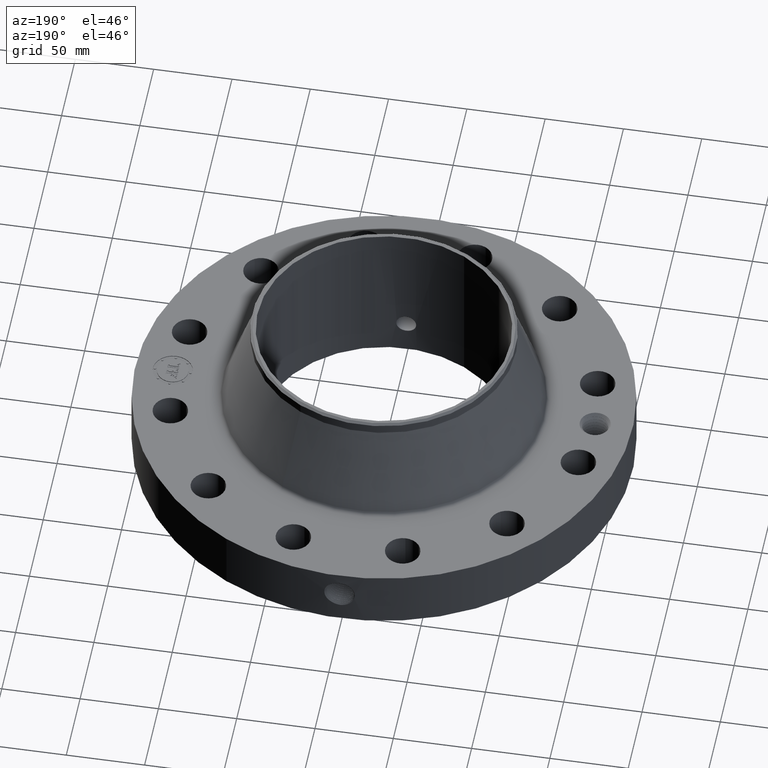
[diagram: clean part render]
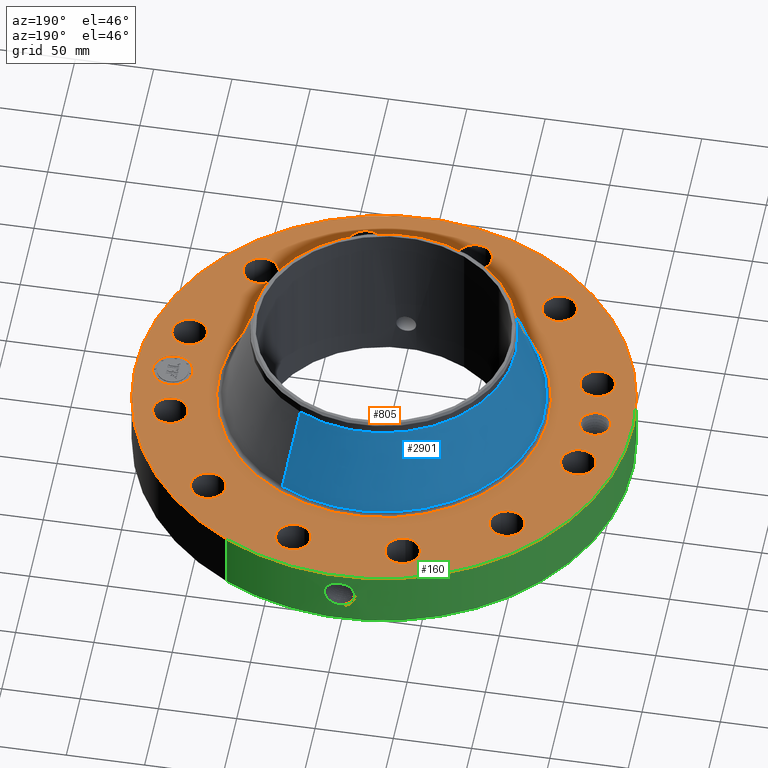
[diagram: same view with three faces highlighted in distinct colors, each labeled with its STEP entity id]
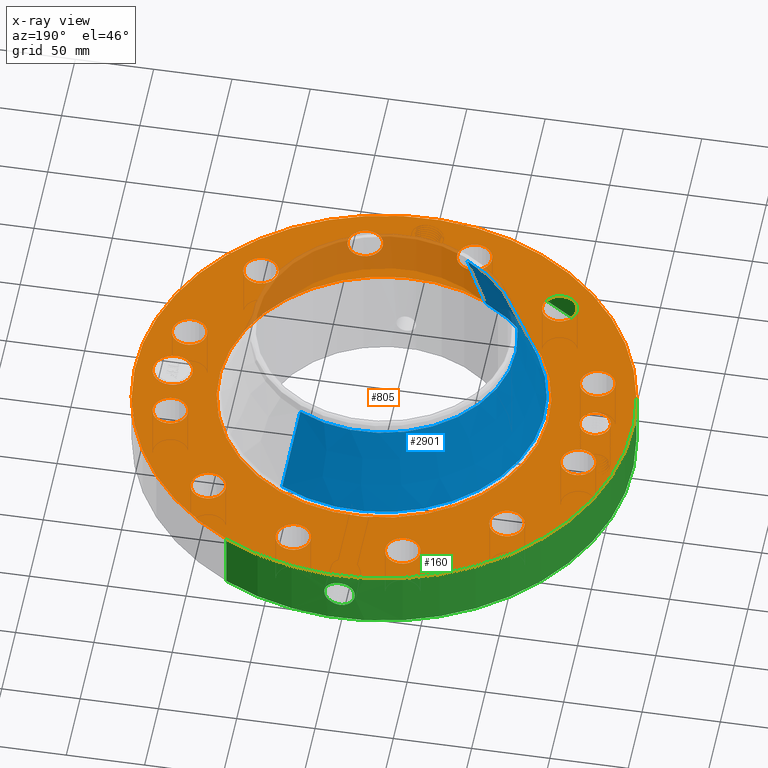
[diagram: x-ray of the same camera — body ghosted, the three highlighted faces saturated]
A machine part, auxiliary view with three faces highlighted in distinct colors.
The next image is the same camera in x-ray (body ghosted, the three faces saturated) — at least one of them is partly hidden behind the body in this view.
Their STEP definitions:

[orange] entity #805 — the highlighted planar face has unit normal (0, 0, -1).
#58=AXIS2_PLACEMENT_3D('Circle Axis2P3D',#56,#57,$) ;
#430=AXIS2_PLACEMENT_3D('Circle Axis2P3D',#428,#429,$) ;
#529=AXIS2_PLACEMENT_3D('Plane Axis2P3D',#526,#527,#528) ;
#537=AXIS2_PLACEMENT_3D('Circle Axis2P3D',#535,#536,$) ;
#546=AXIS2_PLACEMENT_3D('Circle Axis2P3D',#544,#545,$) ;
#555=AXIS2_PLACEMENT_3D('Circle Axis2P3D',#553,#554,$) ;
#564=AXIS2_PLACEMENT_3D('Circle Axis2P3D',#562,#563,$) ;
#573=AXIS2_PLACEMENT_3D('Circle Axis2P3D',#571,#572,$) ;
#582=AXIS2_PLACEMENT_3D('Circle Axis2P3D',#580,#581,$) ;
#591=AXIS2_PLACEMENT_3D('Circle Axis2P3D',#589,#590,$) ;
#600=AXIS2_PLACEMENT_3D('Circle Axis2P3D',#598,#599,$) ;
#609=AXIS2_PLACEMENT_3D('Circle Axis2P3D',#607,#608,$) ;
#618=AXIS2_PLACEMENT_3D('Circle Axis2P3D',#616,#617,$) ;
#627=AXIS2_PLACEMENT_3D('Circle Axis2P3D',#625,#626,$) ;
#636=AXIS2_PLACEMENT_3D('Circle Axis2P3D',#634,#635,$) ;
#645=AXIS2_PLACEMENT_3D('Circle Axis2P3D',#643,#644,$) ;
#654=AXIS2_PLACEMENT_3D('Circle Axis2P3D',#652,#653,$) ;
#663=AXIS2_PLACEMENT_3D('Circle Axis2P3D',#661,#662,$) ;
#672=AXIS2_PLACEMENT_3D('Circle Axis2P3D',#670,#671,$) ;
#681=AXIS2_PLACEMENT_3D('Circle Axis2P3D',#679,#680,$) ;
#690=AXIS2_PLACEMENT_3D('Circle Axis2P3D',#688,#689,$) ;
#699=AXIS2_PLACEMENT_3D('Circle Axis2P3D',#697,#698,$) ;
#708=AXIS2_PLACEMENT_3D('Circle Axis2P3D',#706,#707,$) ;
#717=AXIS2_PLACEMENT_3D('Circle Axis2P3D',#715,#716,$) ;
#726=AXIS2_PLACEMENT_3D('Circle Axis2P3D',#724,#725,$) ;
#735=AXIS2_PLACEMENT_3D('Circle Axis2P3D',#733,#734,$) ;
#744=AXIS2_PLACEMENT_3D('Circle Axis2P3D',#742,#743,$) ;
#753=AXIS2_PLACEMENT_3D('Circle Axis2P3D',#751,#752,$) ;
#762=AXIS2_PLACEMENT_3D('Circle Axis2P3D',#760,#761,$) ;
#771=AXIS2_PLACEMENT_3D('Circle Axis2P3D',#769,#770,$) ;
#780=AXIS2_PLACEMENT_3D('Circle Axis2P3D',#778,#779,$) ;
#789=AXIS2_PLACEMENT_3D('Circle Axis2P3D',#787,#788,$) ;
#798=AXIS2_PLACEMENT_3D('Circle Axis2P3D',#796,#797,$) ;
#53=CARTESIAN_POINT('Vertex',(-2.99640961629,-5.48489101184,1.56000000001)) ;
#56=CARTESIAN_POINT('Axis2P3D Location',(0.,0.,1.56000000001)) ;
#60=CARTESIAN_POINT('Vertex',(2.99640961629,5.48489101184,1.56000000001)) ;
#428=CARTESIAN_POINT('Axis2P3D Location',(0.,0.,1.56000000001)) ;
#526=CARTESIAN_POINT('Axis2P3D Location',(0.,6.25000000003,1.56000000001)) ;
#535=CARTESIAN_POINT('Axis2P3D Location',(-5.31000000002,-3.35689481461E-015,1.56000000001)) ;
#539=CARTESIAN_POINT('Vertex',(-5.65061173186,0.186077037171,1.56000000001)) ;
#541=CARTESIAN_POINT('Vertex',(-4.96938826819,-0.186077037172,1.56000000001)) ;
#544=CARTESIAN_POINT('Axis2P3D Location',(-5.31000000002,-3.35689481461E-015,1.56000000001)) ;
#553=CARTESIAN_POINT('Axis2P3D Location',(5.12906613762,-1.3743291295,1.56000000001)) ;
#557=CARTESIAN_POINT('Vertex',(4.74292981038,-1.16338189251,1.56000000001)) ;
#559=CARTESIAN_POINT('Vertex',(5.51520246485,-1.58527636649,1.56000000001)) ;
#562=CARTESIAN_POINT('Axis2P3D Location',(5.12906613762,-1.3743291295,1.56000000001)) ;
#571=CARTESIAN_POINT('Axis2P3D Location',(0.,0.,1.56000000001)) ;
#575=CARTESIAN_POINT('Vertex',(-1.98747835697,-3.6380547296,1.56000000001)) ;
#577=CARTESIAN_POINT('Vertex',(1.98747835697,3.6380547296,1.56000000001)) ;
#580=CARTESIAN_POINT('Axis2P3D Location',(0.,0.,1.56000000001)) ;
#589=CARTESIAN_POINT('Axis2P3D Location',(3.75473700812,-3.75473700812,1.56000000001)) ;
#593=CARTESIAN_POINT('Vertex',(3.98366725833,-4.13049083782,1.56000000001)) ;
#595=CARTESIAN_POINT('Vertex',(3.5258067579,-3.37898317841,1.56000000001)) ;
#598=CARTESIAN_POINT('Axis2P3D Location',(3.75473700812,-3.75473700812,1.56000000001)) ;
#607=CARTESIAN_POINT('Axis2P3D Location',(1.3743291295,-5.12906613762,1.56000000001)) ;
#611=CARTESIAN_POINT('Vertex',(1.38471162703,-5.56894362482,1.56000000001)) ;
#613=CARTESIAN_POINT('Vertex',(1.36394663197,-4.68918865041,1.56000000001)) ;
#616=CARTESIAN_POINT('Axis2P3D Location',(1.3743291295,-5.12906613762,1.56000000001)) ;
#625=CARTESIAN_POINT('Axis2P3D Location',(-1.3743291295,-5.12906613762,1.56000000001)) ;
#629=CARTESIAN_POINT('Vertex',(-1.58527636649,-5.51520246485,1.56000000001)) ;
#631=CARTESIAN_POINT('Vertex',(-1.16338189251,-4.74292981038,1.56000000001)) ;
#634=CARTESIAN_POINT('Axis2P3D Location',(-1.3743291295,-5.12906613762,1.56000000001)) ;
#643=CARTESIAN_POINT('Axis2P3D Location',(-3.75473700812,-3.75473700812,1.56000000001)) ;
#647=CARTESIAN_POINT('Vertex',(-4.13049083782,-3.98366725833,1.56000000001)) ;
#649=CARTESIAN_POINT('Vertex',(-3.37898317841,-3.5258067579,1.56000000001)) ;
#652=CARTESIAN_POINT('Axis2P3D Location',(-3.75473700812,-3.75473700812,1.56000000001)) ;
#661=CARTESIAN_POINT('Axis2P3D Location',(-5.12906613762,-1.3743291295,1.56000000001)) ;
#665=CARTESIAN_POINT('Vertex',(-5.56894362482,-1.38471162703,1.56000000001)) ;
#667=CARTESIAN_POINT('Vertex',(-4.68918865041,-1.36394663197,1.56000000001)) ;
#670=CARTESIAN_POINT('Axis2P3D Location',(-5.12906613762,-1.3743291295,1.56000000001)) ;
#679=CARTESIAN_POINT('Axis2P3D Location',(-5.12906613762,1.3743291295,1.56000000001)) ;
#683=CARTESIAN_POINT('Vertex',(-5.51520246485,1.58527636649,1.56000000001)) ;
#685=CARTESIAN_POINT('Vertex',(-4.74292981038,1.16338189251,1.56000000001)) ;
#688=CARTESIAN_POINT('Axis2P3D Location',(-5.12906613762,1.3743291295,1.56000000001)) ;
#697=CARTESIAN_POINT('Axis2P3D Location',(-3.75473700812,3.75473700812,1.56000000001)) ;
#701=CARTESIAN_POINT('Vertex',(-3.98366725833,4.13049083782,1.56000000001)) ;
#703=CARTESIAN_POINT('Vertex',(-3.5258067579,3.37898317841,1.56000000001)) ;
#706=CARTESIAN_POINT('Axis2P3D Location',(-3.75473700812,3.75473700812,1.56000000001)) ;
#715=CARTESIAN_POINT('Axis2P3D Location',(-1.3743291295,5.12906613762,1.56000000001)) ;
#719=CARTESIAN_POINT('Vertex',(-1.38471162703,5.56894362482,1.56000000001)) ;
#721=CARTESIAN_POINT('Vertex',(-1.36394663197,4.68918865041,1.56000000001)) ;
#724=CARTESIAN_POINT('Axis2P3D Location',(-1.3743291295,5.12906613762,1.56000000001)) ;
#733=CARTESIAN_POINT('Axis2P3D Location',(1.3743291295,5.12906613762,1.56000000001)) ;
#737=CARTESIAN_POINT('Vertex',(1.58527636649,5.51520246485,1.56000000001)) ;
#739=CARTESIAN_POINT('Vertex',(1.16338189251,4.74292981038,1.56000000001)) ;
#742=CARTESIAN_POINT('Axis2P3D Location',(1.3743291295,5.12906613762,1.56000000001)) ;
#751=CARTESIAN_POINT('Axis2P3D Location',(3.75473700812,3.75473700812,1.56000000001)) ;
#755=CARTESIAN_POINT('Vertex',(4.13049083782,3.98366725833,1.56000000001)) ;
#757=CARTESIAN_POINT('Vertex',(3.37898317841,3.5258067579,1.56000000001)) ;
#760=CARTESIAN_POINT('Axis2P3D Location',(3.75473700812,3.75473700812,1.56000000001)) ;
#769=CARTESIAN_POINT('Axis2P3D Location',(5.12906613762,1.3743291295,1.56000000001)) ;
#773=CARTESIAN_POINT('Vertex',(5.56894362482,1.38471162703,1.56000000001)) ;
#775=CARTESIAN_POINT('Vertex',(4.68918865041,1.36394663197,1.56000000001)) ;
#778=CARTESIAN_POINT('Axis2P3D Location',(5.12906613762,1.3743291295,1.56000000001)) ;
#787=CARTESIAN_POINT('Axis2P3D Location',(5.31000000002,0.,1.56000000001)) ;
#791=CARTESIAN_POINT('Vertex',(5.31000000002,0.499999995002,1.56000000001)) ;
#793=CARTESIAN_POINT('Vertex',(5.31000000002,-0.499999995002,1.56000000001)) ;
#796=CARTESIAN_POINT('Axis2P3D Location',(5.31000000002,0.,1.56000000001)) ;
#57=DIRECTION('Axis2P3D Direction',(0.,0.,-0.0393700787402)) ;
#429=DIRECTION('Axis2P3D Direction',(0.,0.,-0.0393700787402)) ;
#527=DIRECTION('Axis2P3D Direction',(0.,0.,-0.0393700787402)) ;
#528=DIRECTION('Axis2P3D XDirection',(0.0393700787402,0.,0.)) ;
#536=DIRECTION('Axis2P3D Direction',(0.,0.,-0.0393700787402)) ;
#545=DIRECTION('Axis2P3D Direction',(0.,0.,-0.0393700787402)) ;
#554=DIRECTION('Axis2P3D Direction',(0.,0.,-0.0393700787402)) ;
#563=DIRECTION('Axis2P3D Direction',(0.,0.,-0.0393700787402)) ;
#572=DIRECTION('Axis2P3D Direction',(0.,0.,-0.0393700787402)) ;
#581=DIRECTION('Axis2P3D Direction',(0.,0.,-0.0393700787402)) ;
#590=DIRECTION('Axis2P3D Direction',(0.,0.,-0.0393700787402)) ;
#599=DIRECTION('Axis2P3D Direction',(0.,0.,-0.0393700787402)) ;
#608=DIRECTION('Axis2P3D Direction',(0.,0.,-0.0393700787402)) ;
#617=DIRECTION('Axis2P3D Direction',(0.,0.,-0.0393700787402)) ;
#626=DIRECTION('Axis2P3D Direction',(0.,0.,-0.0393700787402)) ;
#635=DIRECTION('Axis2P3D Direction',(0.,0.,-0.0393700787402)) ;
#644=DIRECTION('Axis2P3D Direction',(0.,0.,-0.0393700787402)) ;
#653=DIRECTION('Axis2P3D Direction',(0.,0.,-0.0393700787402)) ;
#662=DIRECTION('Axis2P3D Direction',(0.,0.,-0.0393700787402)) ;
#671=DIRECTION('Axis2P3D Direction',(0.,0.,-0.0393700787402)) ;
#680=DIRECTION('Axis2P3D Direction',(0.,0.,-0.0393700787402)) ;
#689=DIRECTION('Axis2P3D Direction',(0.,0.,-0.0393700787402)) ;
#698=DIRECTION('Axis2P3D Direction',(0.,0.,-0.0393700787402)) ;
#707=DIRECTION('Axis2P3D Direction',(0.,0.,-0.0393700787402)) ;
#716=DIRECTION('Axis2P3D Direction',(0.,0.,-0.0393700787402)) ;
#725=DIRECTION('Axis2P3D Direction',(0.,0.,-0.0393700787402)) ;
#734=DIRECTION('Axis2P3D Direction',(0.,0.,-0.0393700787402)) ;
#743=DIRECTION('Axis2P3D Direction',(0.,0.,-0.0393700787402)) ;
#752=DIRECTION('Axis2P3D Direction',(0.,0.,-0.0393700787402)) ;
#761=DIRECTION('Axis2P3D Direction',(0.,0.,-0.0393700787402)) ;
#770=DIRECTION('Axis2P3D Direction',(0.,0.,-0.0393700787402)) ;
#779=DIRECTION('Axis2P3D Direction',(0.,0.,-0.0393700787402)) ;
#788=DIRECTION('Axis2P3D Direction',(0.,0.,-0.0393700787402)) ;
#797=DIRECTION('Axis2P3D Direction',(0.,0.,-0.0393700787402)) ;
#532=ORIENTED_EDGE('',*,*,#432,.F.) ;
#533=ORIENTED_EDGE('',*,*,#62,.F.) ;
#550=ORIENTED_EDGE('',*,*,#543,.T.) ;
#551=ORIENTED_EDGE('',*,*,#548,.T.) ;
#568=ORIENTED_EDGE('',*,*,#561,.T.) ;
#569=ORIENTED_EDGE('',*,*,#566,.T.) ;
#586=ORIENTED_EDGE('',*,*,#579,.T.) ;
#587=ORIENTED_EDGE('',*,*,#584,.T.) ;
#604=ORIENTED_EDGE('',*,*,#597,.T.) ;
#605=ORIENTED_EDGE('',*,*,#602,.T.) ;
#622=ORIENTED_EDGE('',*,*,#615,.T.) ;
#623=ORIENTED_EDGE('',*,*,#620,.T.) ;
#640=ORIENTED_EDGE('',*,*,#633,.T.) ;
#641=ORIENTED_EDGE('',*,*,#638,.T.) ;
#658=ORIENTED_EDGE('',*,*,#651,.T.) ;
#659=ORIENTED_EDGE('',*,*,#656,.T.) ;
#676=ORIENTED_EDGE('',*,*,#669,.T.) ;
#677=ORIENTED_EDGE('',*,*,#674,.T.) ;
#694=ORIENTED_EDGE('',*,*,#687,.T.) ;
#695=ORIENTED_EDGE('',*,*,#692,.T.) ;
#712=ORIENTED_EDGE('',*,*,#705,.T.) ;
#713=ORIENTED_EDGE('',*,*,#710,.T.) ;
#730=ORIENTED_EDGE('',*,*,#723,.T.) ;
#731=ORIENTED_EDGE('',*,*,#728,.T.) ;
#748=ORIENTED_EDGE('',*,*,#741,.T.) ;
#749=ORIENTED_EDGE('',*,*,#746,.T.) ;
#766=ORIENTED_EDGE('',*,*,#759,.T.) ;
#767=ORIENTED_EDGE('',*,*,#764,.T.) ;
#784=ORIENTED_EDGE('',*,*,#777,.T.) ;
#785=ORIENTED_EDGE('',*,*,#782,.T.) ;
#802=ORIENTED_EDGE('',*,*,#795,.T.) ;
#803=ORIENTED_EDGE('',*,*,#800,.T.) ;
#552=FACE_BOUND('',#549,.T.) ;
#570=FACE_BOUND('',#567,.T.) ;
#588=FACE_BOUND('',#585,.T.) ;
#606=FACE_BOUND('',#603,.T.) ;
#624=FACE_BOUND('',#621,.T.) ;
#642=FACE_BOUND('',#639,.T.) ;
#660=FACE_BOUND('',#657,.T.) ;
#678=FACE_BOUND('',#675,.T.) ;
#696=FACE_BOUND('',#693,.T.) ;
#714=FACE_BOUND('',#711,.T.) ;
#732=FACE_BOUND('',#729,.T.) ;
#750=FACE_BOUND('',#747,.T.) ;
#768=FACE_BOUND('',#765,.T.) ;
#786=FACE_BOUND('',#783,.T.) ;
#804=FACE_BOUND('',#801,.T.) ;
#805=ADVANCED_FACE('PartBody',(#534,#552,#570,#588,#606,#624,#642,#660,#678,#696,#714,#732,#750,#768,#786,#804),#530,.F.) ;
#59=CIRCLE('generated circle',#58,6.25000000003) ;
#431=CIRCLE('generated circle',#430,6.25000000003) ;
#538=CIRCLE('generated circle',#537,0.388125000002) ;
#547=CIRCLE('generated circle',#546,0.388125000002) ;
#556=CIRCLE('generated circle',#555,0.440000000002) ;
#565=CIRCLE('generated circle',#564,0.440000000002) ;
#574=CIRCLE('generated circle',#573,4.14554127166) ;
#583=CIRCLE('generated circle',#582,4.14554127166) ;
#592=CIRCLE('generated circle',#591,0.440000000002) ;
#601=CIRCLE('generated circle',#600,0.440000000002) ;
#610=CIRCLE('generated circle',#609,0.440000000002) ;
#619=CIRCLE('generated circle',#618,0.440000000002) ;
#628=CIRCLE('generated circle',#627,0.440000000002) ;
#637=CIRCLE('generated circle',#636,0.440000000002) ;
#646=CIRCLE('generated circle',#645,0.440000000002) ;
#655=CIRCLE('generated circle',#654,0.440000000002) ;
#664=CIRCLE('generated circle',#663,0.440000000002) ;
#673=CIRCLE('generated circle',#672,0.440000000002) ;
#682=CIRCLE('generated circle',#681,0.440000000002) ;
#691=CIRCLE('generated circle',#690,0.440000000002) ;
#700=CIRCLE('generated circle',#699,0.440000000002) ;
#709=CIRCLE('generated circle',#708,0.440000000002) ;
#718=CIRCLE('generated circle',#717,0.440000000002) ;
#727=CIRCLE('generated circle',#726,0.440000000002) ;
#736=CIRCLE('generated circle',#735,0.440000000002) ;
#745=CIRCLE('generated circle',#744,0.440000000002) ;
#754=CIRCLE('generated circle',#753,0.440000000002) ;
#763=CIRCLE('generated circle',#762,0.440000000002) ;
#772=CIRCLE('generated circle',#771,0.440000000002) ;
#781=CIRCLE('generated circle',#780,0.440000000002) ;
#790=CIRCLE('generated circle',#789,0.499999995002) ;
#799=CIRCLE('generated circle',#798,0.499999995002) ;
#62=EDGE_CURVE('',#54,#61,#59,.T.) ;
#432=EDGE_CURVE('',#61,#54,#431,.T.) ;
#543=EDGE_CURVE('',#540,#542,#538,.T.) ;
#548=EDGE_CURVE('',#542,#540,#547,.T.) ;
#561=EDGE_CURVE('',#558,#560,#556,.T.) ;
#566=EDGE_CURVE('',#560,#558,#565,.T.) ;
#579=EDGE_CURVE('',#576,#578,#574,.T.) ;
#584=EDGE_CURVE('',#578,#576,#583,.T.) ;
#597=EDGE_CURVE('',#594,#596,#592,.T.) ;
#602=EDGE_CURVE('',#596,#594,#601,.T.) ;
#615=EDGE_CURVE('',#612,#614,#610,.T.) ;
#620=EDGE_CURVE('',#614,#612,#619,.T.) ;
#633=EDGE_CURVE('',#630,#632,#628,.T.) ;
#638=EDGE_CURVE('',#632,#630,#637,.T.) ;
#651=EDGE_CURVE('',#648,#650,#646,.T.) ;
#656=EDGE_CURVE('',#650,#648,#655,.T.) ;
#669=EDGE_CURVE('',#666,#668,#664,.T.) ;
#674=EDGE_CURVE('',#668,#666,#673,.T.) ;
#687=EDGE_CURVE('',#684,#686,#682,.T.) ;
#692=EDGE_CURVE('',#686,#684,#691,.T.) ;
#705=EDGE_CURVE('',#702,#704,#700,.T.) ;
#710=EDGE_CURVE('',#704,#702,#709,.T.) ;
#723=EDGE_CURVE('',#720,#722,#718,.T.) ;
#728=EDGE_CURVE('',#722,#720,#727,.T.) ;
#741=EDGE_CURVE('',#738,#740,#736,.T.) ;
#746=EDGE_CURVE('',#740,#738,#745,.T.) ;
#759=EDGE_CURVE('',#756,#758,#754,.T.) ;
#764=EDGE_CURVE('',#758,#756,#763,.T.) ;
#777=EDGE_CURVE('',#774,#776,#772,.T.) ;
#782=EDGE_CURVE('',#776,#774,#781,.T.) ;
#795=EDGE_CURVE('',#792,#794,#790,.T.) ;
#800=EDGE_CURVE('',#794,#792,#799,.T.) ;
#531=EDGE_LOOP('',(#532,#533)) ;
#549=EDGE_LOOP('',(#550,#551)) ;
#567=EDGE_LOOP('',(#568,#569)) ;
#585=EDGE_LOOP('',(#586,#587)) ;
#603=EDGE_LOOP('',(#604,#605)) ;
#621=EDGE_LOOP('',(#622,#623)) ;
#639=EDGE_LOOP('',(#640,#641)) ;
#657=EDGE_LOOP('',(#658,#659)) ;
#675=EDGE_LOOP('',(#676,#677)) ;
#693=EDGE_LOOP('',(#694,#695)) ;
#711=EDGE_LOOP('',(#712,#713)) ;
#729=EDGE_LOOP('',(#730,#731)) ;
#747=EDGE_LOOP('',(#748,#749)) ;
#765=EDGE_LOOP('',(#766,#767)) ;
#783=EDGE_LOOP('',(#784,#785)) ;
#801=EDGE_LOOP('',(#802,#803)) ;
#534=FACE_OUTER_BOUND('',#531,.T.) ;
#530=PLANE('',#529) ;
#54=VERTEX_POINT('',#53) ;
#61=VERTEX_POINT('',#60) ;
#540=VERTEX_POINT('',#539) ;
#542=VERTEX_POINT('',#541) ;
#558=VERTEX_POINT('',#557) ;
#560=VERTEX_POINT('',#559) ;
#576=VERTEX_POINT('',#575) ;
#578=VERTEX_POINT('',#577) ;
#594=VERTEX_POINT('',#593) ;
#596=VERTEX_POINT('',#595) ;
#612=VERTEX_POINT('',#611) ;
#614=VERTEX_POINT('',#613) ;
#630=VERTEX_POINT('',#629) ;
#632=VERTEX_POINT('',#631) ;
#648=VERTEX_POINT('',#647) ;
#650=VERTEX_POINT('',#649) ;
#666=VERTEX_POINT('',#665) ;
#668=VERTEX_POINT('',#667) ;
#684=VERTEX_POINT('',#683) ;
#686=VERTEX_POINT('',#685) ;
#702=VERTEX_POINT('',#701) ;
#704=VERTEX_POINT('',#703) ;
#720=VERTEX_POINT('',#719) ;
#722=VERTEX_POINT('',#721) ;
#738=VERTEX_POINT('',#737) ;
#740=VERTEX_POINT('',#739) ;
#756=VERTEX_POINT('',#755) ;
#758=VERTEX_POINT('',#757) ;
#774=VERTEX_POINT('',#773) ;
#776=VERTEX_POINT('',#775) ;
#792=VERTEX_POINT('',#791) ;
#794=VERTEX_POINT('',#793) ;

[blue] entity #2901 — the highlighted conical surface has half-angle 19.034 deg.
#2113=AXIS2_PLACEMENT_3D('Circle Axis2P3D',#2111,#2112,$) ;
#2862=AXIS2_PLACEMENT_3D('Cone Axis2P3D',#2859,#2860,#2861) ;
#2892=AXIS2_PLACEMENT_3D('Circle Axis2P3D',#2890,#2891,$) ;
#2089=CARTESIAN_POINT('Vertex',(1.93309283,3.53850269025,1.64086426291)) ;
#2096=CARTESIAN_POINT('Vertex',(-1.93309283,-3.53850269025,1.64086426291)) ;
#2111=CARTESIAN_POINT('Axis2P3D Location',(0.,0.,1.64086426291)) ;
#2859=CARTESIAN_POINT('Axis2P3D Location',(0.,0.,3.71945884159)) ;
#2864=CARTESIAN_POINT('Line Origine',(1.76119424524,3.22384444147,2.68016155225)) ;
#2868=CARTESIAN_POINT('Vertex',(1.58929566048,2.90918619268,3.71945884159)) ;
#2875=CARTESIAN_POINT('Vertex',(-1.58929566048,-2.90918619268,3.71945884159)) ;
#2878=CARTESIAN_POINT('Line Origine',(-1.76119424524,-3.22384444147,2.68016155225)) ;
#2890=CARTESIAN_POINT('Axis2P3D Location',(0.,0.,3.71945884159)) ;
#2112=DIRECTION('Axis2P3D Direction',(0.,0.,-0.0393700787402)) ;
#2860=DIRECTION('Axis2P3D Direction',(0.,0.,-0.0393700787402)) ;
#2861=DIRECTION('Axis2P3D XDirection',(-0.0188750212049,-0.0345504945626,0.)) ;
#2865=DIRECTION('Vector Direction',(0.00615573222987,0.0112679922649,-0.0372175014078)) ;
#2879=DIRECTION('Vector Direction',(-0.00615573222987,-0.0112679922649,-0.0372175014078)) ;
#2891=DIRECTION('Axis2P3D Direction',(0.,0.,-0.0393700787402)) ;
#2866=VECTOR('Line Direction',#2865,0.0393700787402) ;
#2880=VECTOR('Line Direction',#2879,0.0393700787402) ;
#2896=ORIENTED_EDGE('',*,*,#2115,.F.) ;
#2897=ORIENTED_EDGE('',*,*,#2882,.T.) ;
#2898=ORIENTED_EDGE('',*,*,#2894,.T.) ;
#2899=ORIENTED_EDGE('',*,*,#2870,.F.) ;
#2901=ADVANCED_FACE('PartBody',(#2900),#2863,.T.) ;
#2114=CIRCLE('generated circle',#2113,4.03210232737) ;
#2893=CIRCLE('generated circle',#2892,3.31500000001) ;
#2863=CONICAL_SURFACE('Cone',#2862,3.31500000001,0.33220804674) ;
#2115=EDGE_CURVE('',#2097,#2090,#2114,.T.) ;
#2870=EDGE_CURVE('',#2090,#2869,#2867,.F.) ;
#2882=EDGE_CURVE('',#2097,#2876,#2881,.F.) ;
#2894=EDGE_CURVE('',#2876,#2869,#2893,.T.) ;
#2895=EDGE_LOOP('',(#2896,#2897,#2898,#2899)) ;
#2900=FACE_OUTER_BOUND('',#2895,.T.) ;
#2867=LINE('Line',#2864,#2866) ;
#2881=LINE('Line',#2878,#2880) ;
#2090=VERTEX_POINT('',#2089) ;
#2097=VERTEX_POINT('',#2096) ;
#2869=VERTEX_POINT('',#2868) ;
#2876=VERTEX_POINT('',#2875) ;

[green] entity #160 — the highlighted cylindrical surface (partial cylindrical patch) has radius 158.75 mm, axis along (0, 0, -1).
#38=AXIS2_PLACEMENT_3D('Cylinder Axis2P3D',#35,#36,#37) ;
#42=AXIS2_PLACEMENT_3D('Circle Axis2P3D',#40,#41,$) ;
#58=AXIS2_PLACEMENT_3D('Circle Axis2P3D',#56,#57,$) ;
#35=CARTESIAN_POINT('Axis2P3D Location',(0.,0.,2.03000000001)) ;
#40=CARTESIAN_POINT('Axis2P3D Location',(0.,0.,0.0600000000002)) ;
#44=CARTESIAN_POINT('Vertex',(-2.99640961629,-5.48489101184,0.0600000000002)) ;
#46=CARTESIAN_POINT('Vertex',(2.99640961629,5.48489101184,0.0600000000002)) ;
#49=CARTESIAN_POINT('Line Origine',(-2.99640961629,-5.48489101184,0.810000000003)) ;
#53=CARTESIAN_POINT('Vertex',(-2.99640961629,-5.48489101184,1.56000000001)) ;
#56=CARTESIAN_POINT('Axis2P3D Location',(0.,0.,1.56000000001)) ;
#60=CARTESIAN_POINT('Vertex',(2.99640961629,5.48489101184,1.56000000001)) ;
#63=CARTESIAN_POINT('Line Origine',(2.99640961629,5.48489101184,0.810000000003)) ;
#75=CARTESIAN_POINT('Control Point',(-0.0614635555501,6.24969777122,1.28873453044)) ;
#76=CARTESIAN_POINT('Control Point',(-0.041420612793,6.24989488644,1.29227337667)) ;
#77=CARTESIAN_POINT('Control Point',(-0.0210705478817,6.24999762516,1.29407720197)) ;
#78=CARTESIAN_POINT('Control Point',(-0.000716625015652,6.24999995894,1.29411849791)) ;
#79=CARTESIAN_POINT('Vertex',(-0.0614452565132,6.24969821853,1.28873805862)) ;
#81=CARTESIAN_POINT('Vertex',(-0.000716453233953,6.24999995896,1.29411850827)) ;
#85=CARTESIAN_POINT('Control Point',(-0.0614451427414,6.24969795228,1.28873745346)) ;
#86=CARTESIAN_POINT('Control Point',(-0.099601725909,6.24932280828,1.28347528152)) ;
#87=CARTESIAN_POINT('Control Point',(-0.136898966589,6.24859400634,1.27129793698)) ;
#88=CARTESIAN_POINT('Control Point',(-0.171067775012,6.2476584267,1.25316971548)) ;
#89=CARTESIAN_POINT('Vertex',(-0.171067775012,6.2476584267,1.25316971548)) ;
#93=CARTESIAN_POINT('Control Point',(-0.029624599714,6.24992979028,0.531087376398)) ;
#94=CARTESIAN_POINT('Control Point',(-0.0850675771315,6.24966699116,0.538171888176)) ;
#95=CARTESIAN_POINT('Control Point',(-0.13890235618,6.24879700942,0.555715194424)) ;
#96=CARTESIAN_POINT('Control Point',(-0.188307485768,6.24740321224,0.583150575716)) ;
#97=CARTESIAN_POINT('Control Point',(-0.276449768255,6.24415683952,0.655463594713)) ;
#98=CARTESIAN_POINT('Control Point',(-0.333310167249,6.24118110124,0.752323970037)) ;
#99=CARTESIAN_POINT('Control Point',(-0.353079942568,6.24002779597,0.806112150953)) ;
#100=CARTESIAN_POINT('Control Point',(-0.36914641559,6.23909137311,0.894601684001)) ;
#101=CARTESIAN_POINT('Control Point',(-0.360945889028,6.23956932855,0.9825296055)) ;
#102=CARTESIAN_POINT('Control Point',(-0.354582046476,6.23994118245,1.01463252783)) ;
#103=CARTESIAN_POINT('Control Point',(-0.330408142264,6.24131002118,1.09289300416)) ;
#104=CARTESIAN_POINT('Control Point',(-0.286455175122,6.24352531942,1.16242269855)) ;
#105=CARTESIAN_POINT('Control Point',(-0.25327359478,6.24503488647,1.19958792981)) ;
#106=CARTESIAN_POINT('Control Point',(-0.214209145415,6.24647716842,1.2302811104)) ;
#107=CARTESIAN_POINT('Control Point',(-0.171067775012,6.2476584267,1.25316971548)) ;
#108=CARTESIAN_POINT('Vertex',(-0.0296245997141,6.24992979028,0.531087376398)) ;
#112=CARTESIAN_POINT('Control Point',(-0.029624599714,6.24992979028,0.531087376398)) ;
#113=CARTESIAN_POINT('Control Point',(-0.0197431947632,6.24997662803,0.530860276062)) ;
#114=CARTESIAN_POINT('Control Point',(-0.00985871018467,6.25000000433,0.53095616725)) ;
#115=CARTESIAN_POINT('Control Point',(2.728783552E-006,6.25000000002,0.531374667805)) ;
#116=CARTESIAN_POINT('Vertex',(2.72878353768E-006,6.25000000002,0.531374667805)) ;
#120=CARTESIAN_POINT('Control Point',(0.193907788678,6.24699125738,0.58506310233)) ;
#121=CARTESIAN_POINT('Control Point',(0.134702840638,6.24882899015,0.55254730142)) ;
#122=CARTESIAN_POINT('Control Point',(0.0677968513111,6.24999997043,0.534251724085)) ;
#123=CARTESIAN_POINT('Control Point',(2.72878355198E-006,6.25000000002,0.531374667805)) ;
#124=CARTESIAN_POINT('Vertex',(0.193907788677,6.24699125738,0.58506310233)) ;
#128=CARTESIAN_POINT('Control Point',(0.193907788677,6.24699125738,0.58506310233)) ;
#129=CARTESIAN_POINT('Control Point',(0.223359311727,6.24607707654,0.601238098439)) ;
#130=CARTESIAN_POINT('Control Point',(0.251216906984,6.2450386423,0.620307113168)) ;
#131=CARTESIAN_POINT('Control Point',(0.277075776201,6.24392572389,0.642131280038)) ;
#132=CARTESIAN_POINT('Control Point',(0.34493817198,6.24068147765,0.712694025265)) ;
#133=CARTESIAN_POINT('Control Point',(0.38912824421,6.23793966199,0.801690052004)) ;
#134=CARTESIAN_POINT('Control Point',(0.405171685345,6.23683264622,0.865656484683)) ;
#135=CARTESIAN_POINT('Control Point',(0.407320015382,6.23674970346,0.979563780497)) ;
#136=CARTESIAN_POINT('Control Point',(0.368187360941,6.23918287819,1.08414176802)) ;
#137=CARTESIAN_POINT('Control Point',(0.344342799493,6.24059961542,1.12551354923)) ;
#138=CARTESIAN_POINT('Control Point',(0.274833289354,6.244271632,1.21150785035)) ;
#139=CARTESIAN_POINT('Control Point',(0.180523298961,6.24777195259,1.26763439892)) ;
#140=CARTESIAN_POINT('Control Point',(0.121387710315,6.24927433195,1.28831333588)) ;
#141=CARTESIAN_POINT('Control Point',(0.0602306911752,6.25000024927,1.29710706111)) ;
#142=CARTESIAN_POINT('Control Point',(-2.58579355288E-005,6.24999999997,1.29415298435)) ;
#143=CARTESIAN_POINT('Vertex',(-2.58579355267E-005,6.24999999997,1.29415298435)) ;
#147=CARTESIAN_POINT('Control Point',(-0.00071645322308,6.24999995896,1.29411850825)) ;
#148=CARTESIAN_POINT('Control Point',(-0.000371179202307,6.24999999854,1.29413605498)) ;
#149=CARTESIAN_POINT('Control Point',(-2.58579421942E-005,6.24999999997,1.29415298434)) ;
#36=DIRECTION('Axis2P3D Direction',(0.,0.,-0.0393700787402)) ;
#37=DIRECTION('Axis2P3D XDirection',(0.0188750212049,0.0345504945626,0.)) ;
#41=DIRECTION('Axis2P3D Direction',(0.,0.,-0.0393700787402)) ;
#50=DIRECTION('Vector Direction',(0.,0.,-0.0393700787402)) ;
#57=DIRECTION('Axis2P3D Direction',(0.,0.,-0.0393700787402)) ;
#64=DIRECTION('Vector Direction',(0.,0.,-0.0393700787402)) ;
#51=VECTOR('Line Direction',#50,0.0393700787402) ;
#65=VECTOR('Line Direction',#64,0.0393700787402) ;
#69=ORIENTED_EDGE('',*,*,#48,.F.) ;
#70=ORIENTED_EDGE('',*,*,#55,.T.) ;
#71=ORIENTED_EDGE('',*,*,#62,.T.) ;
#72=ORIENTED_EDGE('',*,*,#67,.F.) ;
#152=ORIENTED_EDGE('',*,*,#83,.F.) ;
#153=ORIENTED_EDGE('',*,*,#91,.T.) ;
#154=ORIENTED_EDGE('',*,*,#110,.F.) ;
#155=ORIENTED_EDGE('',*,*,#118,.T.) ;
#156=ORIENTED_EDGE('',*,*,#126,.F.) ;
#157=ORIENTED_EDGE('',*,*,#145,.T.) ;
#158=ORIENTED_EDGE('',*,*,#150,.F.) ;
#159=FACE_BOUND('',#151,.T.) ;
#160=ADVANCED_FACE('PartBody',(#73,#159),#39,.T.) ;
#74=B_SPLINE_CURVE_WITH_KNOTS('',3,(#75,#76,#77,#78),.UNSPECIFIED.,.F.,.U.,(4,4),(4.26354528238,6.52162971902),.UNSPECIFIED.) ;
#84=B_SPLINE_CURVE_WITH_KNOTS('',3,(#85,#86,#87,#88),.UNSPECIFIED.,.F.,.U.,(4,4),(0.,4.3278398849),.UNSPECIFIED.) ;
#92=B_SPLINE_CURVE_WITH_KNOTS('',5,(#93,#94,#95,#96,#97,#98,#99,#100,#101,#102,#103,#104,#105,#106,#107),.UNSPECIFIED.,.F.,.U.,(6,3,3,3,6),(0.,9.7143246532,19.9376130069,25.9632427367,35.0704252999),.UNSPECIFIED.) ;
#111=B_SPLINE_CURVE_WITH_KNOTS('',3,(#112,#113,#114,#115),.UNSPECIFIED.,.F.,.U.,(4,4),(0.,1.03063568957),.UNSPECIFIED.) ;
#119=B_SPLINE_CURVE_WITH_KNOTS('',3,(#120,#121,#122,#123),.UNSPECIFIED.,.F.,.U.,(4,4),(0.,7.08527859618),.UNSPECIFIED.) ;
#127=B_SPLINE_CURVE_WITH_KNOTS('',5,(#128,#129,#130,#131,#132,#133,#134,#135,#136,#137,#138,#139,#140,#141,#142),.UNSPECIFIED.,.F.,.U.,(6,3,3,3,6),(0.,5.87429063347,17.0154698031,25.3762087145,36.6394061685),.UNSPECIFIED.) ;
#146=B_SPLINE_CURVE_WITH_KNOTS('',2,(#147,#148,#149),.UNSPECIFIED.,.F.,.U.,(3,3),(1.07160087024,1.09741995095),.UNSPECIFIED.) ;
#43=CIRCLE('generated circle',#42,6.25000000003) ;
#59=CIRCLE('generated circle',#58,6.25000000003) ;
#39=CYLINDRICAL_SURFACE('generated cylinder',#38,6.25000000003) ;
#48=EDGE_CURVE('',#45,#47,#43,.T.) ;
#55=EDGE_CURVE('',#45,#54,#52,.F.) ;
#62=EDGE_CURVE('',#54,#61,#59,.T.) ;
#67=EDGE_CURVE('',#47,#61,#66,.F.) ;
#83=EDGE_CURVE('',#80,#82,#74,.T.) ;
#91=EDGE_CURVE('',#80,#90,#84,.T.) ;
#110=EDGE_CURVE('',#109,#90,#92,.T.) ;
#118=EDGE_CURVE('',#109,#117,#111,.T.) ;
#126=EDGE_CURVE('',#125,#117,#119,.T.) ;
#145=EDGE_CURVE('',#125,#144,#127,.T.) ;
#150=EDGE_CURVE('',#82,#144,#146,.T.) ;
#68=EDGE_LOOP('',(#69,#70,#71,#72)) ;
#151=EDGE_LOOP('',(#152,#153,#154,#155,#156,#157,#158)) ;
#73=FACE_OUTER_BOUND('',#68,.T.) ;
#52=LINE('Line',#49,#51) ;
#66=LINE('Line',#63,#65) ;
#45=VERTEX_POINT('',#44) ;
#47=VERTEX_POINT('',#46) ;
#54=VERTEX_POINT('',#53) ;
#61=VERTEX_POINT('',#60) ;
#80=VERTEX_POINT('',#79) ;
#82=VERTEX_POINT('',#81) ;
#90=VERTEX_POINT('',#89) ;
#109=VERTEX_POINT('',#108) ;
#117=VERTEX_POINT('',#116) ;
#125=VERTEX_POINT('',#124) ;
#144=VERTEX_POINT('',#143) ;